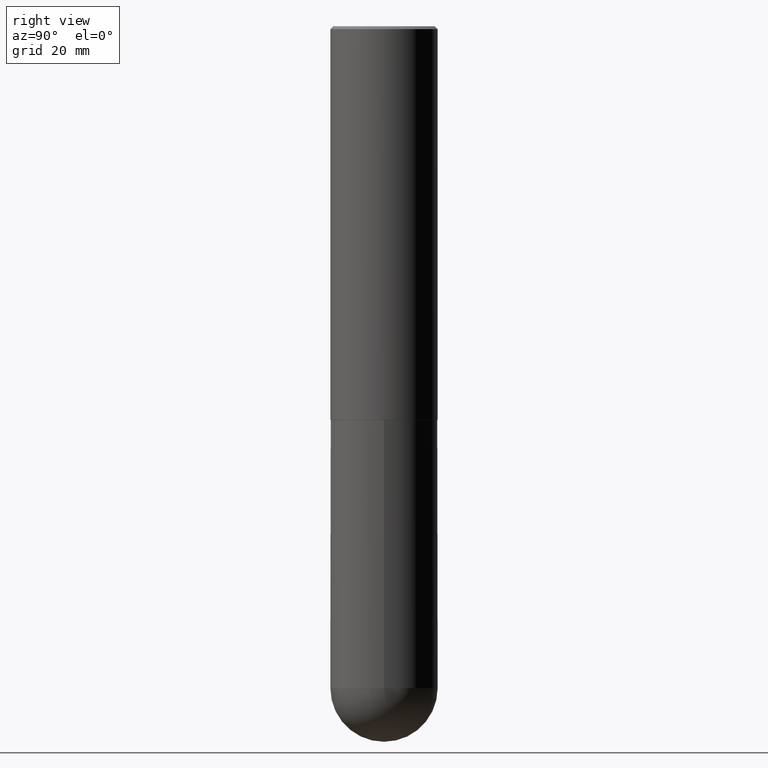
[diagram: clean part render]
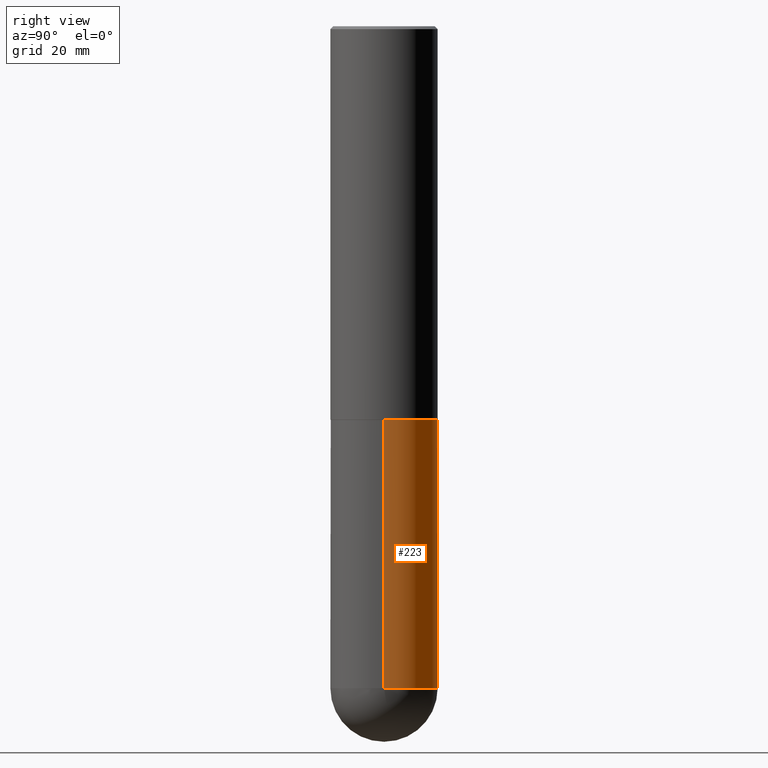
[diagram: same view with one face highlighted and labeled with its STEP entity id]
A machine part, right view. The second image highlights one B-rep face of the part: STEP entity #223.
In plain terms, the highlighted cylindrical surface (partial cylindrical patch) has radius 9.525 mm, axis along (-0, 0, 1).
Its self-contained STEP definition (entity closure, byte-faithful):
#7 = EDGE_CURVE ( 'NONE', #310, #104, #276, .T. ) ;
#21 = DIRECTION ( 'NONE',  ( -2.445468806185136877E-29, 3.491481338843145188E-15, 1.000000000000000000 ) ) ;
#23 = AXIS2_PLACEMENT_3D ( 'NONE', #120, #307, #103 ) ;
#52 = CARTESIAN_POINT ( 'NONE',  ( 0.3750000000000001110, -2.618611004132350411E-15, 1.828566290923476483E-29 ) ) ;
#61 = CARTESIAN_POINT ( 'NONE',  ( -0.3750000000000001110, -1.021030217788372352E-14, -4.625000000000000000 ) ) ;
#64 = DIRECTION ( 'NONE',  ( -2.445468806185136597E-29, 3.491481338843145583E-15, 1.000000000000000000 ) ) ;
#71 = VERTEX_POINT ( 'NONE', #61 ) ;
#83 = EDGE_CURVE ( 'NONE', #408, #310, #367, .T. ) ;
#96 = CIRCLE ( 'NONE', #125, 0.3750000000000001110 ) ;
#103 = DIRECTION ( 'NONE',  ( 1.000000000000000000, -6.982962677686270655E-15, 0.000000000000000000 ) ) ;
#104 = VERTEX_POINT ( 'NONE', #298 ) ;
#108 = CARTESIAN_POINT ( 'NONE',  ( -0.3750000000000001110, 2.664535259100376486E-15, -1.844600658845590159E-29 ) ) ;
#119 = AXIS2_PLACEMENT_3D ( 'NONE', #286, #226, #317 ) ;
#120 = CARTESIAN_POINT ( 'NONE',  ( 1.131029322860625676E-28, -1.614810119214955014E-14, -4.625000000000000000 ) ) ;
#125 = AXIS2_PLACEMENT_3D ( 'NONE', #246, #64, #216 ) ;
#127 = EDGE_LOOP ( 'NONE', ( #348, #198, #162, #316, #132 ) ) ;
#132 = ORIENTED_EDGE ( 'NONE', *, *, #251, .T. ) ;
#137 = VERTEX_POINT ( 'NONE', #382 ) ;
#139 = CYLINDRICAL_SURFACE ( 'NONE', #378, 0.3750000000000001110 ) ;
#145 = EDGE_CURVE ( 'NONE', #137, #71, #96, .T. ) ;
#162 = ORIENTED_EDGE ( 'NONE', *, *, #7, .F. ) ;
#186 = CARTESIAN_POINT ( 'NONE',  ( 0.3750000000000001110, -1.549344844111645238E-14, -4.625000000000000000 ) ) ;
#198 = ORIENTED_EDGE ( 'NONE', *, *, #374, .T. ) ;
#204 = CIRCLE ( 'NONE', #23, 0.3750000000000001110 ) ;
#216 = DIRECTION ( 'NONE',  ( 1.000000000000000000, -6.982962677686270655E-15, 0.000000000000000000 ) ) ;
#223 = ADVANCED_FACE ( 'NONE', ( #290 ), #139, .T. ) ;
#226 = DIRECTION ( 'NONE',  ( -2.445468806185136597E-29, 3.491481338843145583E-15, 1.000000000000000000 ) ) ;
#230 = DIRECTION ( 'NONE',  ( -2.445468806185136597E-29, 3.491481338843145583E-15, 1.000000000000000000 ) ) ;
#246 = CARTESIAN_POINT ( 'NONE',  ( 1.131029322860625676E-28, -1.614810119214955014E-14, -4.625000000000000000 ) ) ;
#251 = EDGE_CURVE ( 'NONE', #408, #137, #204, .T. ) ;
#255 = CARTESIAN_POINT ( 'NONE',  ( 0.3750000000000000555, -1.222018468595100145E-14, -2.750000000000000000 ) ) ;
#276 = CIRCLE ( 'NONE', #119, 0.3750000000000000555 ) ;
#286 = CARTESIAN_POINT ( 'NONE',  ( 6.725039217009124520E-29, -9.601573681818649859E-15, -2.750000000000000000 ) ) ;
#290 = FACE_OUTER_BOUND ( 'NONE', #127, .T. ) ;
#298 = CARTESIAN_POINT ( 'NONE',  ( -0.3750000000000000555, -1.021030217788372194E-14, -2.750000000000000000 ) ) ;
#307 = DIRECTION ( 'NONE',  ( -2.445468806185136597E-29, 3.491481338843145583E-15, 1.000000000000000000 ) ) ;
#310 = VERTEX_POINT ( 'NONE', #255 ) ;
#316 = ORIENTED_EDGE ( 'NONE', *, *, #83, .F. ) ;
#317 = DIRECTION ( 'NONE',  ( 1.000000000000000000, -6.982962677686266711E-15, 0.000000000000000000 ) ) ;
#340 = VECTOR ( 'NONE', #356, 39.37007874015748143 ) ;
#348 = ORIENTED_EDGE ( 'NONE', *, *, #145, .T. ) ;
#355 = DIRECTION ( 'NONE',  ( 1.000000000000000000, -6.982962677686265922E-15, 4.876176775795935793E-29 ) ) ;
#356 = DIRECTION ( 'NONE',  ( -2.445468806185136877E-29, 3.491481338843145188E-15, 1.000000000000000000 ) ) ;
#365 = VECTOR ( 'NONE', #21, 39.37007874015748143 ) ;
#367 = LINE ( 'NONE', #52, #365 ) ;
#374 = EDGE_CURVE ( 'NONE', #71, #104, #389, .T. ) ;
#378 = AXIS2_PLACEMENT_3D ( 'NONE', #388, #230, #355 ) ;
#382 = CARTESIAN_POINT ( 'NONE',  ( 2.618611004132463218E-15, 0.3749999999999838463, -4.625000000000000888 ) ) ;
#388 = CARTESIAN_POINT ( 'NONE',  ( 0.000000000000000000, 0.000000000000000000, 0.000000000000000000 ) ) ;
#389 = LINE ( 'NONE', #108, #340 ) ;
#408 = VERTEX_POINT ( 'NONE', #186 ) ;